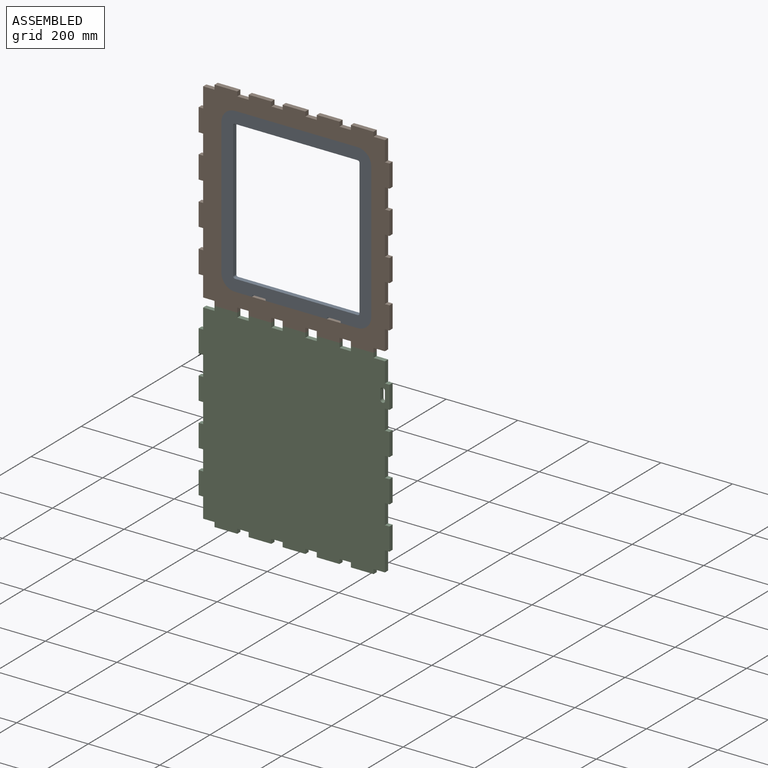
[diagram: assembled view]
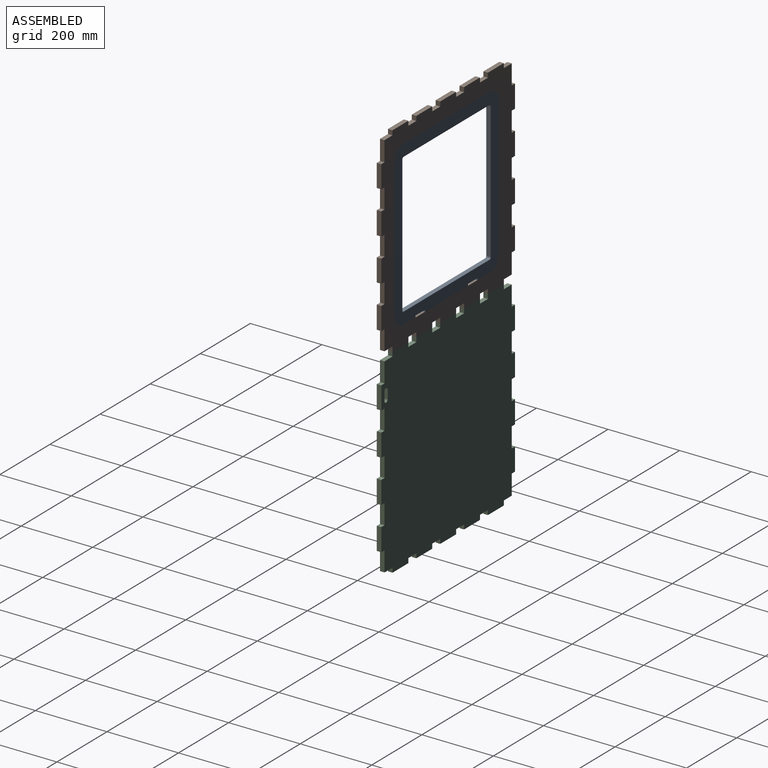
[diagram: assembled view, second angle]
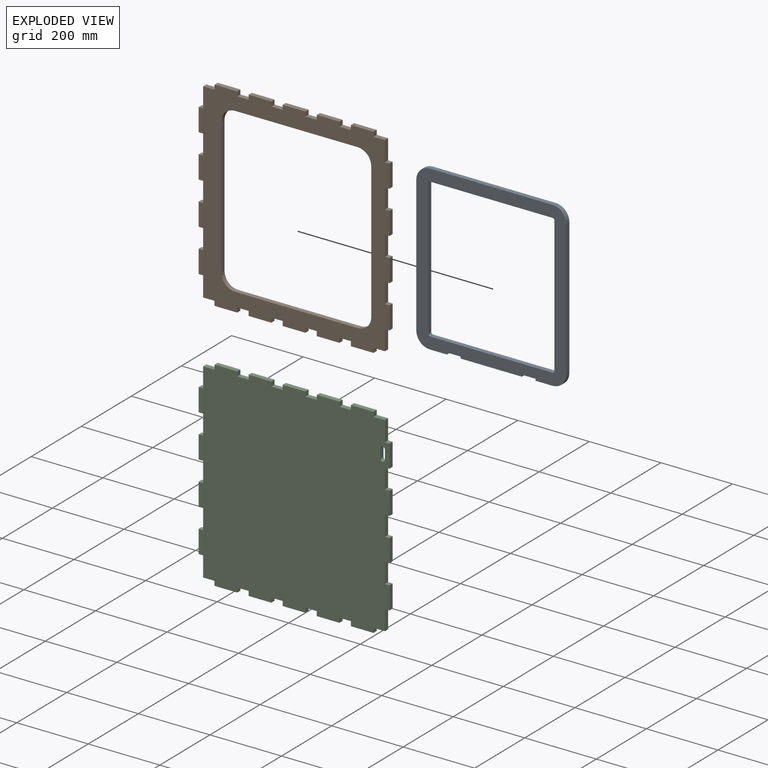
[diagram: exploded view]
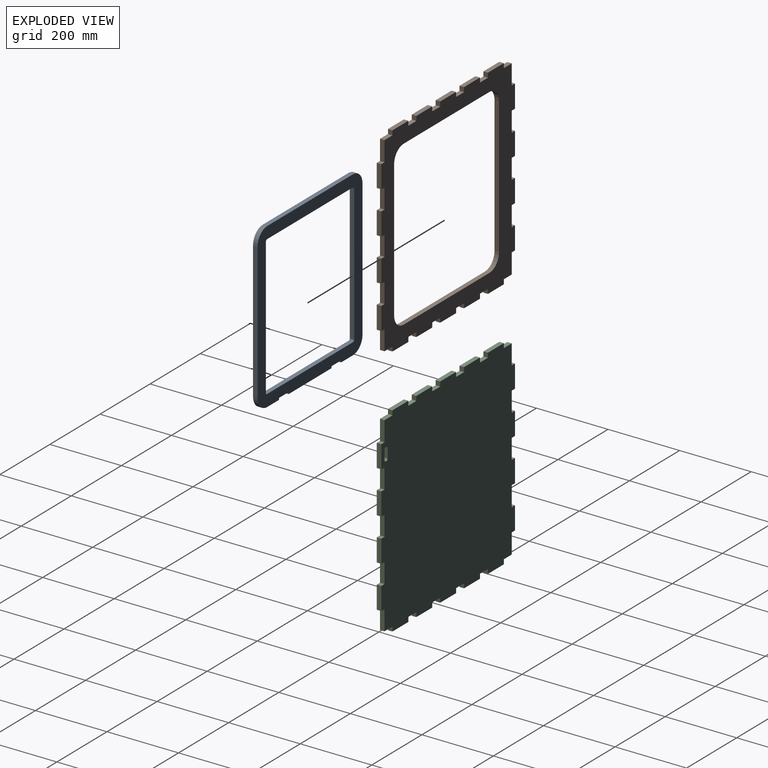
[diagram: exploded view, second angle]
ASSEMBLY  parts=3 mates=2
PART A: 26 faces, bbox 457.2x12.7x419.1 mm
  f0: plane 171.45x12.7mm, normal (1,0,0), area 2177.4mm2, adj f1,f23,f24,f25
  f1: plane 12.7x5.08mm, normal (0,0,1), area 64.5mm2, adj f0,f2,f24,f25
  f2: plane 38.1x12.7mm, normal (1,0,0), area 483.9mm2, adj f1,f3,f24,f25
  f3: plane 12.7x5.08mm, normal (0,0,-1), area 64.5mm2, adj f2,f4,f24,f25
  f4: plane 47.63x12.7mm, normal (1,0,0), area 604.8mm2, adj f3,f5,f24,f25
  f5: cylinder r=38.1mm len=38.1mm, axis (0,-1,0), area 760.1mm2, adj f4,f6,f24,f25
  f6: plane 381x12.7mm, normal (0,0,1), area 4838.7mm2, adj f5,f7,f24,f25
  f7: cylinder r=38.1mm len=38.1mm, axis (0,-1,0), area 760.1mm2, adj f6,f8,f24,f25
  f8: plane 342.9x12.7mm, normal (-1,0,0), area 4354.8mm2, adj f7,f9,f24,f25
  f9: cylinder r=38.1mm len=38.1mm, axis (0,-1,0), area 760.1mm2, adj f8,f10,f24,f25
  f10: plane 381x12.7mm, normal (0,0,-1), area 4838.7mm2, adj f9,f11,f24,f25
  f11: cylinder r=38.1mm len=38.1mm, axis (0,-1,0), area 760.1mm2, adj f10,f12,f24,f25
  f12: plane 47.63x12.7mm, normal (1,0,0), area 604.8mm2, adj f11,f13,f24,f25
  f13: plane 12.7x5.08mm, normal (0,0,1), area 64.5mm2, adj f12,f14,f24,f25
  f14: plane 38.1x12.7mm, normal (1,0,0), area 483.9mm2, adj f13,f23,f24,f25
  f15: plane 342.9x12.7mm, normal (1,0,0), area 4354.8mm2, adj f16,f22,f24,f25
  f16: cylinder r=5.08mm len=12.7mm, axis (0,-1,0), area 101.3mm2, adj f15,f17,f24,f25
  f17: plane 381x12.7mm, normal (0,0,-1), area 4838.7mm2, adj f16,f18,f24,f25
  f18: cylinder r=5.08mm len=12.7mm, axis (0,-1,0), area 101.3mm2, adj f17,f19,f24,f25
  f19: plane 342.9x12.7mm, normal (-1,0,0), area 4354.8mm2, adj f18,f20,f24,f25
  f20: cylinder r=5.08mm len=12.7mm, axis (0,-1,0), area 101.3mm2, adj f19,f21,f24,f25
  f21: plane 381x12.7mm, normal (0,0,1), area 4838.7mm2, adj f20,f22,f24,f25
  f22: cylinder r=5.08mm len=12.7mm, axis (0,-1,0), area 101.3mm2, adj f15,f21,f24,f25
  f23: plane 12.7x5.08mm, normal (0,0,-1), area 64.5mm2, adj f0,f14,f24,f25
  f24: plane 457.2x419.1mm, normal (0,1,0), area 51898.6mm2, adj f0,f1,f2,f3,f4,f5,f6,f7
  f25: plane 457.2x419.1mm, normal (0,-1,0), area 51898.6mm2, adj f0,f1,f2,f3,f4,f5,f6,f7
PART B: 86 faces, bbox 558.8x12.7x533.4 mm
  f0: plane 558.8x533.4mm, normal (0,1,0), area 95116.9mm2, adj f2,f3,f4,f5,f6,f7,f8,f9
  f1: plane 558.8x533.4mm, normal (0,-1,0), area 95116.9mm2, adj f2,f3,f4,f5,f6,f7,f8,f9
  f2: plane 31.75x12.7mm, normal (-1,0,0), area 403.2mm2, adj f0,f1,f21,f75
  f3: plane 31.75x12.7mm, normal (-1,0,0), area 403.2mm2, adj f0,f1,f70,f72
  f4: plane 31.75x12.7mm, normal (-1,0,0), area 403.2mm2, adj f0,f1,f67,f69
  f5: plane 31.75x12.7mm, normal (-1,0,0), area 403.2mm2, adj f0,f1,f64,f66
  f6: plane 31.75x12.7mm, normal (-1,0,0), area 403.2mm2, adj f0,f1,f63,f76
  f7: plane 31.75x12.7mm, normal (1,0,0), area 403.2mm2, adj f0,f1,f16,f61
  f8: plane 31.75x12.7mm, normal (1,0,0), area 403.2mm2, adj f0,f1,f55,f58
  f9: plane 31.75x12.7mm, normal (1,0,0), area 403.2mm2, adj f0,f1,f52,f54
  f10: plane 31.75x12.7mm, normal (1,0,0), area 403.2mm2, adj f0,f1,f49,f51
  f11: plane 31.75x12.7mm, normal (1,0,0), area 403.2mm2, adj f0,f1,f48,f60
  f12: plane 55.88x12.7mm, normal (0,0,-1), area 709.7mm2, adj f0,f1,f43,f45
  f13: plane 55.88x12.7mm, normal (0,0,-1), area 709.7mm2, adj f0,f1,f40,f42
  f14: plane 55.88x12.7mm, normal (0,0,-1), area 709.7mm2, adj f0,f1,f37,f39
  f15: plane 55.88x12.7mm, normal (0,0,-1), area 709.7mm2, adj f0,f1,f20,f36
  f16: plane 55.88x12.7mm, normal (0,0,1), area 709.7mm2, adj f0,f1,f7,f34
  f17: plane 55.88x12.7mm, normal (0,0,1), area 709.7mm2, adj f0,f1,f31,f33
  f18: plane 55.88x12.7mm, normal (0,0,1), area 709.7mm2, adj f0,f1,f28,f30
  f19: plane 55.88x12.7mm, normal (0,0,1), area 709.7mm2, adj f0,f1,f25,f27
  f20: plane 31.75x12.7mm, normal (-1,0,0), area 403.2mm2, adj f0,f1,f15,f73
  f21: plane 55.88x12.7mm, normal (0,0,1), area 709.7mm2, adj f0,f1,f2,f24
  f22: plane 31.75x12.7mm, normal (1,0,0), area 403.2mm2, adj f0,f1,f23,f57
  f23: plane 55.88x12.7mm, normal (0,0,-1), area 709.7mm2, adj f0,f1,f22,f46
  f24: plane 12.7x12.7mm, normal (-1,0,0), area 161.3mm2, adj f0,f1,f21,f26
  f25: plane 12.7x12.7mm, normal (1,0,0), area 161.3mm2, adj f0,f1,f19,f26
  f26: plane 63.5x12.7mm, normal (0,0,1), area 806.4mm2, adj f0,f1,f24,f25
  f27: plane 12.7x12.7mm, normal (-1,0,0), area 161.3mm2, adj f0,f1,f19,f29
  f28: plane 12.7x12.7mm, normal (1,0,0), area 161.3mm2, adj f0,f1,f18,f29
  f29: plane 63.5x12.7mm, normal (0,0,1), area 806.4mm2, adj f0,f1,f27,f28
  f30: plane 12.7x12.7mm, normal (-1,0,0), area 161.3mm2, adj f0,f1,f18,f32
  f31: plane 12.7x12.7mm, normal (1,0,0), area 161.3mm2, adj f0,f1,f17,f32
  f32: plane 63.5x12.7mm, normal (0,0,1), area 806.4mm2, adj f0,f1,f30,f31
  f33: plane 12.7x12.7mm, normal (-1,0,0), area 161.3mm2, adj f0,f1,f17,f35
  f34: plane 12.7x12.7mm, normal (1,0,0), area 161.3mm2, adj f0,f1,f16,f35
  f35: plane 63.5x12.7mm, normal (0,0,1), area 806.4mm2, adj f0,f1,f33,f34
  f36: plane 12.7x12.7mm, normal (-1,0,0), area 161.3mm2, adj f0,f1,f15,f38
  f37: plane 12.7x12.7mm, normal (1,0,0), area 161.3mm2, adj f0,f1,f14,f38
  f38: plane 63.5x12.7mm, normal (0,0,-1), area 806.4mm2, adj f0,f1,f36,f37
  f39: plane 12.7x12.7mm, normal (-1,0,0), area 161.3mm2, adj f0,f1,f14,f41
  f40: plane 12.7x12.7mm, normal (1,0,0), area 161.3mm2, adj f0,f1,f13,f41
  f41: plane 63.5x12.7mm, normal (0,0,-1), area 806.4mm2, adj f0,f1,f39,f40
  f42: plane 12.7x12.7mm, normal (-1,0,0), area 161.3mm2, adj f0,f1,f13,f44
  f43: plane 12.7x12.7mm, normal (1,0,0), area 161.3mm2, adj f0,f1,f12,f44
  f44: plane 63.5x12.7mm, normal (0,0,-1), area 806.4mm2, adj f0,f1,f42,f43
  f45: plane 12.7x12.7mm, normal (-1,0,0), area 161.3mm2, adj f0,f1,f12,f47
  f46: plane 12.7x12.7mm, normal (1,0,0), area 161.3mm2, adj f0,f1,f23,f47
  f47: plane 63.5x12.7mm, normal (0,0,-1), area 806.4mm2, adj f0,f1,f45,f46
  f48: plane 12.7x12.7mm, normal (0,0,1), area 161.3mm2, adj f0,f1,f11,f50
  f49: plane 12.7x12.7mm, normal (0,0,-1), area 161.3mm2, adj f0,f1,f10,f50
  f50: plane 63.5x12.7mm, normal (1,0,0), area 806.4mm2, adj f0,f1,f48,f49
  f51: plane 12.7x12.7mm, normal (0,0,1), area 161.3mm2, adj f0,f1,f10,f53
  f52: plane 12.7x12.7mm, normal (0,0,-1), area 161.3mm2, adj f0,f1,f9,f53
  f53: plane 63.5x12.7mm, normal (1,0,0), area 806.4mm2, adj f0,f1,f51,f52
  f54: plane 12.7x12.7mm, normal (0,0,1), area 161.3mm2, adj f0,f1,f9,f56
  f55: plane 12.7x12.7mm, normal (0,0,-1), area 161.3mm2, adj f0,f1,f8,f56
  f56: plane 63.5x12.7mm, normal (1,0,0), area 806.4mm2, adj f0,f1,f54,f55
  f57: plane 12.7x12.7mm, normal (0,0,-1), area 161.3mm2, adj f0,f1,f22,f59
  f58: plane 12.7x12.7mm, normal (0,0,1), area 161.3mm2, adj f0,f1,f8,f59
  f59: plane 63.5x12.7mm, normal (1,0,0), area 806.4mm2, adj f0,f1,f57,f58
  f60: plane 12.7x12.7mm, normal (0,0,-1), area 161.3mm2, adj f0,f1,f11,f62
  f61: plane 12.7x12.7mm, normal (0,0,1), area 161.3mm2, adj f0,f1,f7,f62
  f62: plane 63.5x12.7mm, normal (1,0,0), area 806.4mm2, adj f0,f1,f60,f61
  f63: plane 12.7x12.7mm, normal (0,0,1), area 161.3mm2, adj f0,f1,f6,f65
  f64: plane 12.7x12.7mm, normal (0,0,-1), area 161.3mm2, adj f0,f1,f5,f65
  f65: plane 63.5x12.7mm, normal (-1,0,0), area 806.4mm2, adj f0,f1,f63,f64
  f66: plane 12.7x12.7mm, normal (0,0,1), area 161.3mm2, adj f0,f1,f5,f68
  f67: plane 12.7x12.7mm, normal (0,0,-1), area 161.3mm2, adj f0,f1,f4,f68
  f68: plane 63.5x12.7mm, normal (-1,0,0), area 806.4mm2, adj f0,f1,f66,f67
  f69: plane 12.7x12.7mm, normal (0,0,1), area 161.3mm2, adj f0,f1,f4,f71
  f70: plane 12.7x12.7mm, normal (0,0,-1), area 161.3mm2, adj f0,f1,f3,f71
  f71: plane 63.5x12.7mm, normal (-1,0,0), area 806.4mm2, adj f0,f1,f69,f70
  f72: plane 12.7x12.7mm, normal (0,0,1), area 161.3mm2, adj f0,f1,f3,f74
  f73: plane 12.7x12.7mm, normal (0,0,-1), area 161.3mm2, adj f0,f1,f20,f74
  f74: plane 63.5x12.7mm, normal (-1,0,0), area 806.4mm2, adj f0,f1,f72,f73
  f75: plane 12.7x12.7mm, normal (0,0,1), area 161.3mm2, adj f0,f1,f2,f77
  f76: plane 12.7x12.7mm, normal (0,0,-1), area 161.3mm2, adj f0,f1,f6,f77
  f77: plane 63.5x12.7mm, normal (-1,0,0), area 806.4mm2, adj f0,f1,f75,f76
  f78: plane 342.9x12.7mm, normal (-1,0,0), area 4354.8mm2, adj f0,f1,f79,f85
  f79: cylinder r=38.1mm len=38.1mm, axis (0,-1,0), area 760.1mm2, adj f0,f1,f78,f80
  f80: plane 381x12.7mm, normal (0,0,-1), area 4838.7mm2, adj f0,f1,f79,f81
  f81: cylinder r=38.1mm len=38.1mm, axis (0,-1,0), area 760.1mm2, adj f0,f1,f80,f82
  f82: plane 342.9x12.7mm, normal (1,0,0), area 4354.8mm2, adj f0,f1,f81,f83
  f83: cylinder r=38.1mm len=38.1mm, axis (0,-1,0), area 760.1mm2, adj f0,f1,f82,f84
  f84: plane 381x12.7mm, normal (0,0,1), area 4838.7mm2, adj f0,f1,f83,f85
  f85: cylinder r=38.1mm len=38.1mm, axis (0,-1,0), area 760.1mm2, adj f0,f1,f78,f84
PART C: 82 faces, bbox 558.8x12.7x533.4 mm
  f0: plane 31.75x12.7mm, normal (-1,0,0), area 403.2mm2, adj f22,f23,f73,f75
  f1: plane 31.75x12.7mm, normal (-1,0,0), area 403.2mm2, adj f22,f23,f70,f72
  f2: plane 31.75x12.7mm, normal (-1,0,0), area 403.2mm2, adj f22,f23,f67,f69
  f3: plane 31.75x12.7mm, normal (-1,0,0), area 403.2mm2, adj f22,f23,f64,f66
  f4: plane 31.75x12.7mm, normal (-1,0,0), area 403.2mm2, adj f21,f22,f23,f63
  f5: plane 31.75x12.7mm, normal (1,0,0), area 403.2mm2, adj f22,f23,f58,f60
  f6: plane 31.75x12.7mm, normal (1,0,0), area 403.2mm2, adj f22,f23,f55,f57
  f7: plane 31.75x12.7mm, normal (1,0,0), area 403.2mm2, adj f22,f23,f52,f54
  f8: plane 31.75x12.7mm, normal (1,0,0), area 403.2mm2, adj f22,f23,f49,f51
  f9: plane 31.75x12.7mm, normal (1,0,0), area 403.2mm2, adj f11,f22,f23,f48
  f10: plane 55.88x12.7mm, normal (0,0,-1), area 709.7mm2, adj f22,f23,f43,f46
  f11: plane 55.88x12.7mm, normal (0,0,-1), area 709.7mm2, adj f9,f22,f23,f42
  f12: plane 55.88x12.7mm, normal (0,0,-1), area 709.7mm2, adj f22,f23,f40,f45
  f13: plane 55.88x12.7mm, normal (0,0,-1), area 709.7mm2, adj f22,f23,f37,f39
  f14: plane 55.88x12.7mm, normal (0,0,1), area 709.7mm2, adj f22,f23,f28,f33
  f15: plane 55.88x12.7mm, normal (0,0,1), area 709.7mm2, adj f22,f23,f30,f34
  f16: plane 55.88x12.7mm, normal (0,0,1), area 709.7mm2, adj f22,f23,f25,f27
  f17: plane 55.88x12.7mm, normal (0,0,1), area 709.7mm2, adj f18,f22,f23,f24
  f18: plane 31.75x12.7mm, normal (-1,0,0), area 403.2mm2, adj f17,f22,f23,f76
  f19: plane 55.88x12.7mm, normal (0,0,1), area 709.7mm2, adj f20,f22,f23,f31
  f20: plane 31.75x12.7mm, normal (1,0,0), area 403.2mm2, adj f19,f22,f23,f61
  f21: plane 55.88x12.7mm, normal (0,0,-1), area 709.7mm2, adj f4,f22,f23,f36
  f22: plane 558.8x533.4mm, normal (0,-1,0), area 285034mm2, adj f0,f1,f2,f3,f4,f5,f6,f7
  f23: plane 558.8x533.4mm, normal (0,1,0), area 285034mm2, adj f0,f1,f2,f3,f4,f5,f6,f7
  f24: plane 12.7x12.7mm, normal (-1,0,0), area 161.3mm2, adj f17,f22,f23,f26
  f25: plane 12.7x12.7mm, normal (1,0,0), area 161.3mm2, adj f16,f22,f23,f26
  f26: plane 63.5x12.7mm, normal (0,0,1), area 806.4mm2, adj f22,f23,f24,f25
  f27: plane 12.7x12.7mm, normal (-1,0,0), area 161.3mm2, adj f16,f22,f23,f29
  f28: plane 12.7x12.7mm, normal (1,0,0), area 161.3mm2, adj f14,f22,f23,f29
  f29: plane 63.5x12.7mm, normal (0,0,1), area 806.4mm2, adj f22,f23,f27,f28
  f30: plane 12.7x12.7mm, normal (-1,0,0), area 161.3mm2, adj f15,f22,f23,f32
  f31: plane 12.7x12.7mm, normal (1,0,0), area 161.3mm2, adj f19,f22,f23,f32
  f32: plane 63.5x12.7mm, normal (0,0,1), area 806.4mm2, adj f22,f23,f30,f31
  f33: plane 12.7x12.7mm, normal (-1,0,0), area 161.3mm2, adj f14,f22,f23,f35
  f34: plane 12.7x12.7mm, normal (1,0,0), area 161.3mm2, adj f15,f22,f23,f35
  f35: plane 63.5x12.7mm, normal (0,0,1), area 806.4mm2, adj f22,f23,f33,f34
  f36: plane 12.7x12.7mm, normal (-1,0,0), area 161.3mm2, adj f21,f22,f23,f38
  f37: plane 12.7x12.7mm, normal (1,0,0), area 161.3mm2, adj f13,f22,f23,f38
  f38: plane 63.5x12.7mm, normal (0,0,-1), area 806.4mm2, adj f22,f23,f36,f37
  f39: plane 12.7x12.7mm, normal (-1,0,0), area 161.3mm2, adj f13,f22,f23,f41
  f40: plane 12.7x12.7mm, normal (1,0,0), area 161.3mm2, adj f12,f22,f23,f41
  f41: plane 63.5x12.7mm, normal (0,0,-1), area 806.4mm2, adj f22,f23,f39,f40
  f42: plane 12.7x12.7mm, normal (1,0,0), area 161.3mm2, adj f11,f22,f23,f44
  f43: plane 12.7x12.7mm, normal (-1,0,0), area 161.3mm2, adj f10,f22,f23,f44
  f44: plane 63.5x12.7mm, normal (0,0,-1), area 806.4mm2, adj f22,f23,f42,f43
  f45: plane 12.7x12.7mm, normal (-1,0,0), area 161.3mm2, adj f12,f22,f23,f47
  f46: plane 12.7x12.7mm, normal (1,0,0), area 161.3mm2, adj f10,f22,f23,f47
  f47: plane 63.5x12.7mm, normal (0,0,-1), area 806.4mm2, adj f22,f23,f45,f46
  f48: plane 12.7x12.7mm, normal (0,0,-1), area 161.3mm2, adj f9,f22,f23,f50
  f49: plane 12.7x12.7mm, normal (0,0,1), area 161.3mm2, adj f8,f22,f23,f50
  f50: plane 63.5x12.7mm, normal (1,0,0), area 806.4mm2, adj f22,f23,f48,f49
  f51: plane 12.7x12.7mm, normal (0,0,-1), area 161.3mm2, adj f8,f22,f23,f53
  f52: plane 12.7x12.7mm, normal (0,0,1), area 161.3mm2, adj f7,f22,f23,f53
  f53: plane 63.5x12.7mm, normal (1,0,0), area 806.4mm2, adj f22,f23,f51,f52
  f54: plane 12.7x12.7mm, normal (0,0,-1), area 161.3mm2, adj f7,f22,f23,f56
  f55: plane 12.7x12.7mm, normal (0,0,1), area 161.3mm2, adj f6,f22,f23,f56
  f56: plane 63.5x12.7mm, normal (1,0,0), area 806.4mm2, adj f22,f23,f54,f55
  f57: plane 12.7x12.7mm, normal (0,0,-1), area 161.3mm2, adj f6,f22,f23,f59
  f58: plane 12.7x12.7mm, normal (0,0,1), area 161.3mm2, adj f5,f22,f23,f59
  f59: plane 63.5x12.7mm, normal (1,0,0), area 806.4mm2, adj f22,f23,f57,f58
  f60: plane 12.7x12.7mm, normal (0,0,-1), area 161.3mm2, adj f5,f22,f23,f62
  f61: plane 12.7x12.7mm, normal (0,0,1), area 161.3mm2, adj f20,f22,f23,f62
  f62: plane 63.5x12.7mm, normal (1,0,0), area 806.4mm2, adj f22,f23,f60,f61
  f63: plane 12.7x12.7mm, normal (0,0,-1), area 161.3mm2, adj f4,f22,f23,f65
  f64: plane 12.7x12.7mm, normal (0,0,1), area 161.3mm2, adj f3,f22,f23,f65
  f65: plane 63.5x12.7mm, normal (-1,0,0), area 806.4mm2, adj f22,f23,f63,f64
  f66: plane 12.7x12.7mm, normal (0,0,-1), area 161.3mm2, adj f3,f22,f23,f68
  f67: plane 12.7x12.7mm, normal (0,0,1), area 161.3mm2, adj f2,f22,f23,f68
  f68: plane 63.5x12.7mm, normal (-1,0,0), area 806.4mm2, adj f22,f23,f66,f67
  f69: plane 12.7x12.7mm, normal (0,0,-1), area 161.3mm2, adj f2,f22,f23,f71
  f70: plane 12.7x12.7mm, normal (0,0,1), area 161.3mm2, adj f1,f22,f23,f71
  f71: plane 63.5x12.7mm, normal (-1,0,0), area 806.4mm2, adj f22,f23,f69,f70
  f72: plane 12.7x12.7mm, normal (0,0,-1), area 161.3mm2, adj f1,f22,f23,f74
  f73: plane 12.7x12.7mm, normal (0,0,1), area 161.3mm2, adj f0,f22,f23,f74
  f74: plane 63.5x12.7mm, normal (-1,0,0), area 806.4mm2, adj f22,f23,f72,f73
  f75: plane 12.7x12.7mm, normal (0,0,-1), area 161.3mm2, adj f0,f22,f23,f77
  f76: plane 12.7x12.7mm, normal (0,0,1), area 161.3mm2, adj f18,f22,f23,f77
  f77: plane 63.5x12.7mm, normal (-1,0,0), area 806.4mm2, adj f22,f23,f75,f76
  f78: plane 25.4x12.7mm, normal (0,0,-1), area 322.6mm2, adj f22,f23,f79,f81
  f79: cylinder r=6.35mm len=12.7mm, axis (0,1,0), area 253.4mm2, adj f22,f23,f78,f80
  f80: plane 25.4x12.7mm, normal (0,0,1), area 322.6mm2, adj f22,f23,f79,f81
  f81: cylinder r=6.35mm len=12.7mm, axis (0,1,0), area 253.4mm2, adj f22,f23,f78,f80
PLACE A rot(axis=(0,1,0),90deg) t=(390.9,-422.65,1569.23)mm
PLACE B rot(axis=(0,1,0),90deg) t=(390.9,-422.65,1569.23)mm
PLACE C rot(axis=(0,-1,0),90deg) t=(390.9,-1095.75,1010.43)mm
MATE fastened B.f84 <-> A.f10  axis (1,0,0) through (187.7,-759.2,1569.23)mm
MATE fastened B.f59 <-> C.f62  axis (0,0,-1) through (200.4,-759.2,1289.83)mm
